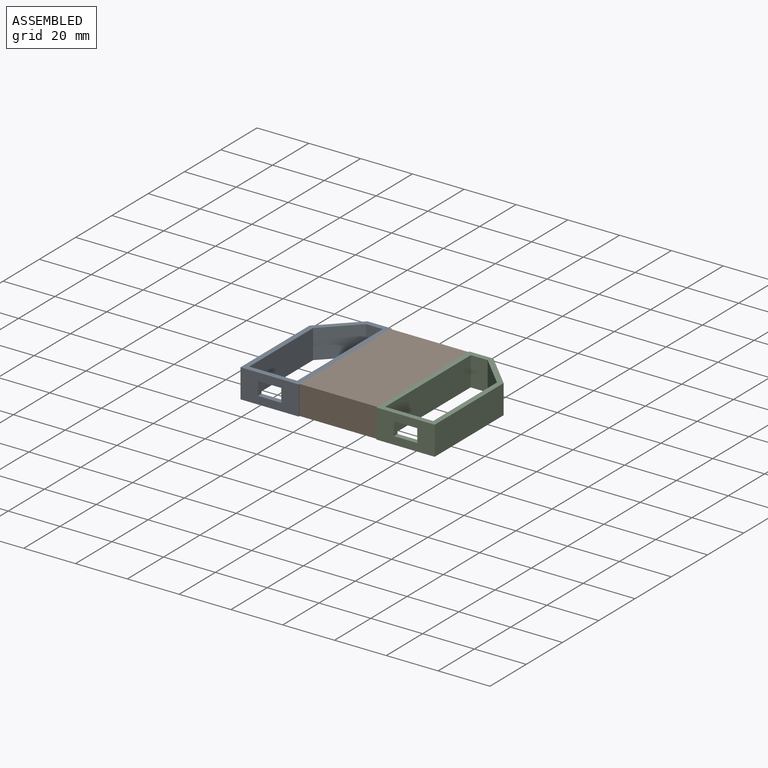
[diagram: assembled view]
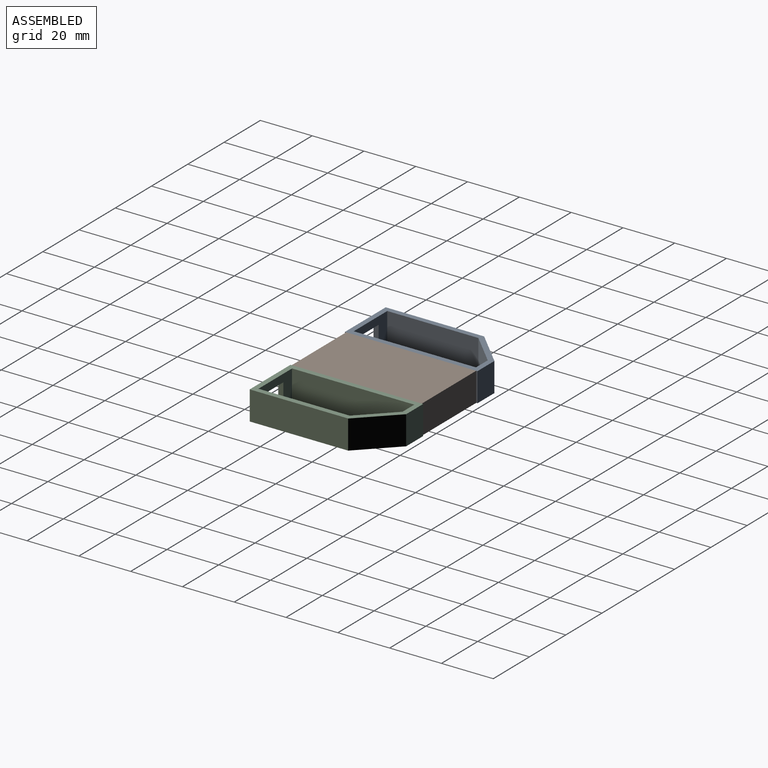
[diagram: assembled view, second angle]
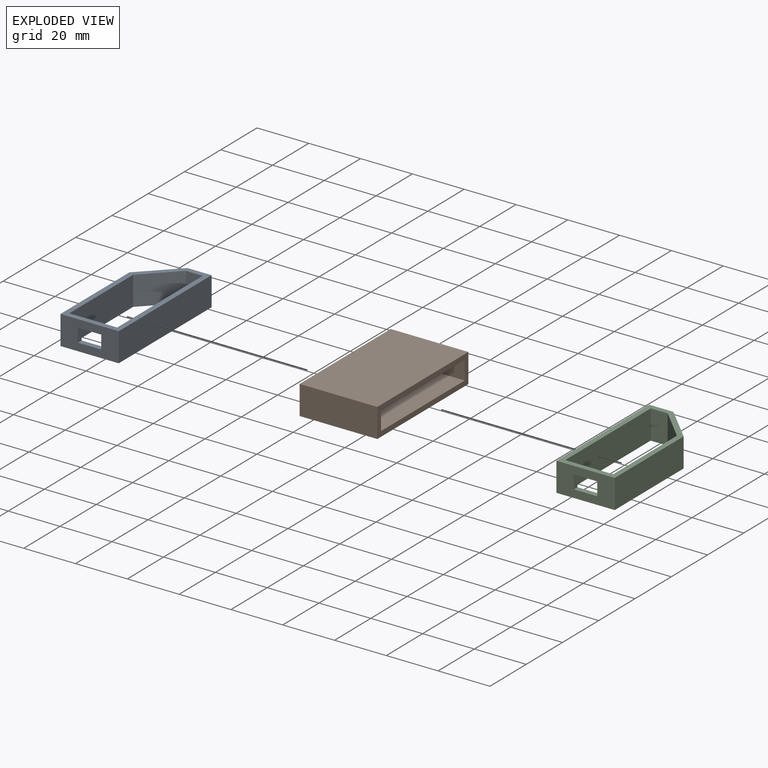
[diagram: exploded view]
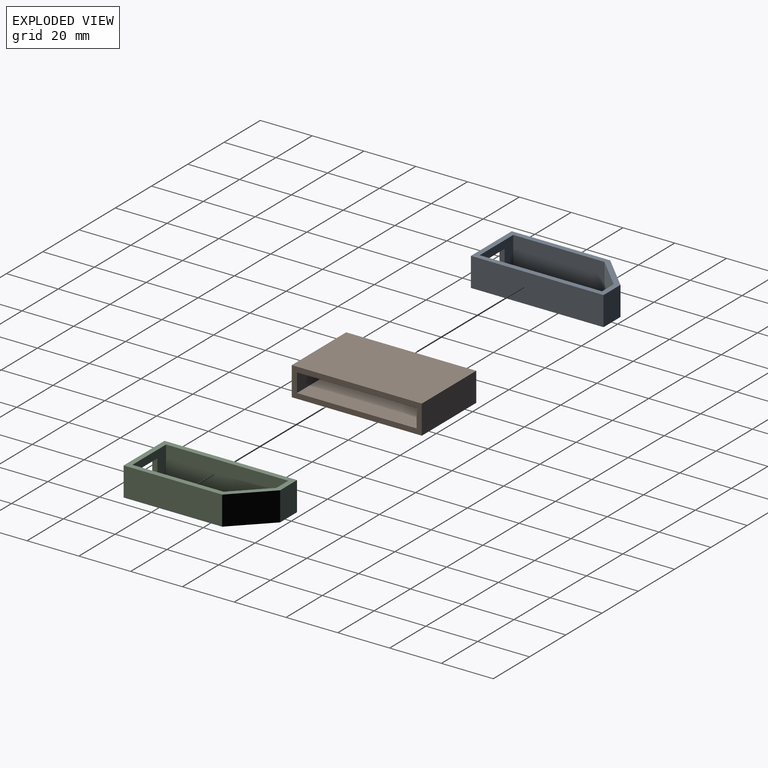
[diagram: exploded view, second angle]
ASSEMBLY  parts=3 mates=2
PART A: 16 faces, bbox 22.5x51.2x11.2 mm
  f0: plane 22.5x11.2mm, normal (0,-1,0), area 205.2mm2, adj f2,f9,f10,f11,f12,f13,f14,f15
  f1: plane 18.5x11.2mm, normal (0,1,0), area 160.4mm2, adj f5,f8,f10,f11,f12,f13,f14,f15
  f2: plane 38.03x11.2mm, normal (1,0,0), area 425.9mm2, adj f0,f3,f10,f11
  f3: plane 13.17x13.17mm, normal (0.71,0.71,0), area 208.6mm2, adj f2,f4,f10,f11
  f4: plane 11.2x9.33mm, normal (0,1,0), area 104.5mm2, adj f3,f9,f10,f11
  f5: plane 47.2x11.2mm, normal (1,0,0), area 528.6mm2, adj f1,f6,f10,f11
  f6: plane 11.2x6.5mm, normal (0,-1,0), area 72.8mm2, adj f5,f7,f10,f11
  f7: plane 12x12mm, normal (-0.71,-0.71,0), area 190.1mm2, adj f6,f8,f10,f11
  f8: plane 35.2x11.2mm, normal (-1,0,0), area 394.2mm2, adj f1,f7,f10,f11
  f9: plane 51.2x11.2mm, normal (-1,0,0), area 573.4mm2, adj f0,f4,f10,f11
  f10: plane 51.2x22.5mm, normal (0,0,1), area 264.1mm2, adj f0,f1,f2,f3,f4,f5,f6,f7
  f11: plane 51.2x22.5mm, normal (0,0,-1), area 264.1mm2, adj f0,f1,f2,f3,f4,f5,f6,f7
  f12: plane 5.2x2mm, normal (-1,0,0), area 10.4mm2, adj f0,f1,f13,f15
  f13: plane 9x2mm, normal (0,0,-1), area 18mm2, adj f0,f1,f12,f14
  f14: plane 5.2x2mm, normal (1,0,0), area 10.4mm2, adj f0,f1,f13,f15
  f15: plane 9x2mm, normal (0,0,1), area 18mm2, adj f0,f1,f12,f14
PART B: 10 faces, bbox 30x50.2x11.2 mm
  f0: plane 30x11.2mm, normal (0,-1,0), area 336mm2, adj f1,f7,f8,f9
  f1: plane 50.2x30mm, normal (0,0,-1), area 1506mm2, adj f0,f2,f8,f9
  f2: plane 30x11.2mm, normal (0,1,0), area 336mm2, adj f1,f7,f8,f9
  f3: plane 30x7.2mm, normal (0,1,0), area 216mm2, adj f4,f6,f8,f9
  f4: plane 46.2x30mm, normal (0,0,-1), area 1386mm2, adj f3,f5,f8,f9
  f5: plane 30x7.2mm, normal (0,-1,0), area 216mm2, adj f4,f6,f8,f9
  f6: plane 46.2x30mm, normal (0,0,1), area 1386mm2, adj f3,f5,f8,f9
  f7: plane 50.2x30mm, normal (0,0,1), area 1506mm2, adj f0,f2,f8,f9
  f8: plane 50.2x11.2mm, normal (1,0,0), area 229.6mm2, adj f0,f1,f2,f3,f4,f5,f6,f7
  f9: plane 50.2x11.2mm, normal (-1,0,0), area 229.6mm2, adj f0,f1,f2,f3,f4,f5,f6,f7
PART C: same geometry as A
PLACE A rot(axis=(0,-1,0),180deg) t=(-86.08,8.2,32.66)mm
PLACE B t=(-63.58,33.8,27.06)mm
PLACE C t=(-11.08,8.2,21.46)mm
MATE fastened B.f8 <-> C.f9  axis (1,0,0) through (-33.58,33.8,27.06)mm
MATE fastened B.f9 <-> A.f9  axis (-1,0,0) through (-63.58,33.8,27.06)mm
